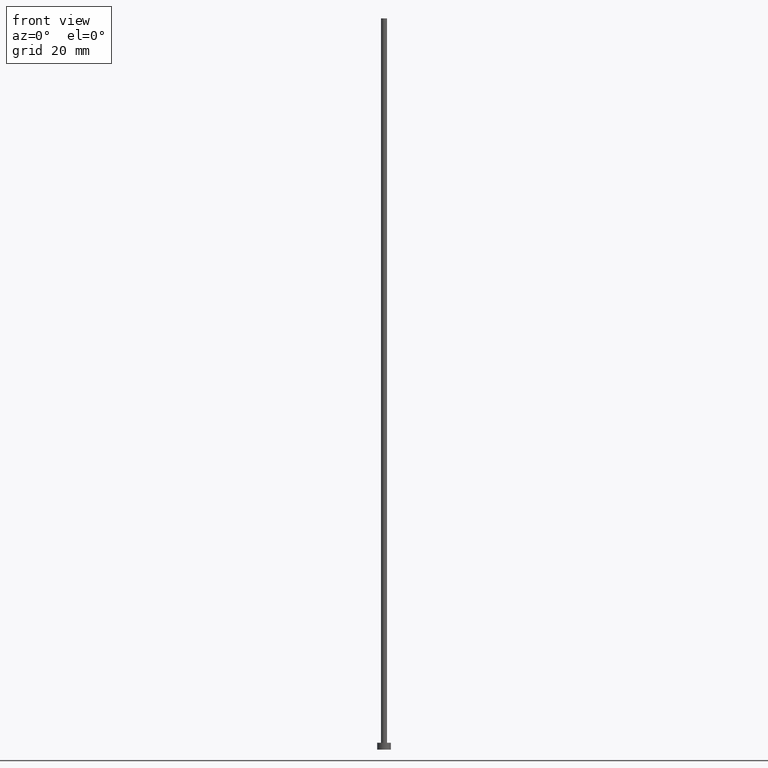
[diagram: clean part render]
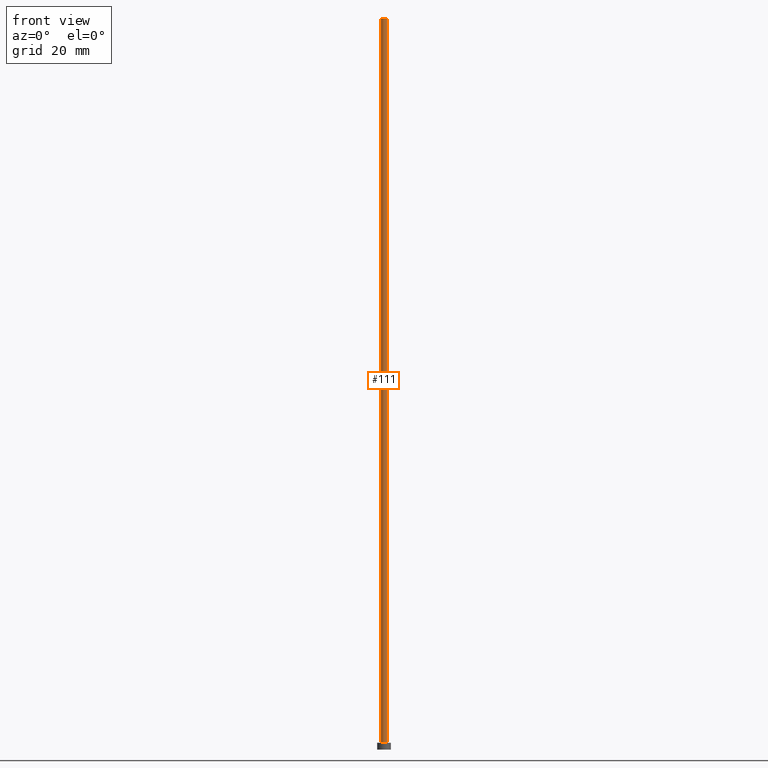
[diagram: same view with one face highlighted and labeled with its STEP entity id]
A machine part, front view. The second image highlights one B-rep face of the part: STEP entity #111.
In plain terms, the highlighted cylindrical surface (edge-blend (fillet) strip) has radius 0.65 mm, axis along (-0, -0, -1).
Its self-contained STEP definition (entity closure, byte-faithful):
#3 = AXIS2_PLACEMENT_3D ( 'NONE', #73, #173, #88 ) ;
#15 = VECTOR ( 'NONE', #235, 1000.000000000000000 ) ;
#48 = VERTEX_POINT ( 'NONE', #208 ) ;
#52 = FACE_OUTER_BOUND ( 'NONE', #159, .T. ) ;
#73 = CARTESIAN_POINT ( 'NONE',  ( 0.000000000000000000, 0.000000000000000000, 160.0000000000000000 ) ) ;
#88 = DIRECTION ( 'NONE',  ( 1.000000000000000000, 0.000000000000000000, 0.000000000000000000 ) ) ;
#90 = CARTESIAN_POINT ( 'NONE',  ( -0.6500000000000000222, 0.000000000000000000, 160.0000000000000000 ) ) ;
#92 = CARTESIAN_POINT ( 'NONE',  ( 0.000000000000000000, 0.000000000000000000, 1.500000000000000000 ) ) ;
#93 = VERTEX_POINT ( 'NONE', #109 ) ;
#103 = EDGE_CURVE ( 'NONE', #122, #93, #234, .T. ) ;
#104 = EDGE_CURVE ( 'NONE', #93, #48, #254, .T. ) ;
#107 = AXIS2_PLACEMENT_3D ( 'NONE', #92, #241, #176 ) ;
#109 = CARTESIAN_POINT ( 'NONE',  ( 0.6500000000000000222, 7.960204194457795477E-17, 160.0000000000000000 ) ) ;
#111 = ADVANCED_FACE ( 'NONE', ( #52 ), #137, .T. ) ;
#112 = LINE ( 'NONE', #138, #239 ) ;
#113 = CARTESIAN_POINT ( 'NONE',  ( -0.6500000000000000222, 0.000000000000000000, 1.500000000000000000 ) ) ;
#114 = DIRECTION ( 'NONE',  ( -0.000000000000000000, -0.000000000000000000, -1.000000000000000000 ) ) ;
#121 = CIRCLE ( 'NONE', #107, 0.6500000000000000222 ) ;
#122 = VERTEX_POINT ( 'NONE', #90 ) ;
#129 = ORIENTED_EDGE ( 'NONE', *, *, #171, .T. ) ;
#135 = CARTESIAN_POINT ( 'NONE',  ( 0.000000000000000000, 0.000000000000000000, 160.0000000000000000 ) ) ;
#137 = CYLINDRICAL_SURFACE ( 'NONE', #170, 0.6500000000000000222 ) ;
#138 = CARTESIAN_POINT ( 'NONE',  ( -0.6500000000000000222, 0.000000000000000000, 160.0000000000000000 ) ) ;
#141 = VERTEX_POINT ( 'NONE', #113 ) ;
#149 = ORIENTED_EDGE ( 'NONE', *, *, #243, .T. ) ;
#154 = CARTESIAN_POINT ( 'NONE',  ( 0.6500000000000000222, 7.960204194457795477E-17, 160.0000000000000000 ) ) ;
#159 = EDGE_LOOP ( 'NONE', ( #200, #224, #129, #149 ) ) ;
#170 = AXIS2_PLACEMENT_3D ( 'NONE', #135, #191, #172 ) ;
#171 = EDGE_CURVE ( 'NONE', #122, #141, #112, .T. ) ;
#172 = DIRECTION ( 'NONE',  ( -1.000000000000000000, 0.000000000000000000, 0.000000000000000000 ) ) ;
#173 = DIRECTION ( 'NONE',  ( 0.000000000000000000, 0.000000000000000000, 1.000000000000000000 ) ) ;
#176 = DIRECTION ( 'NONE',  ( 1.000000000000000000, 0.000000000000000000, 0.000000000000000000 ) ) ;
#191 = DIRECTION ( 'NONE',  ( -0.000000000000000000, -0.000000000000000000, -1.000000000000000000 ) ) ;
#200 = ORIENTED_EDGE ( 'NONE', *, *, #104, .F. ) ;
#208 = CARTESIAN_POINT ( 'NONE',  ( 0.6500000000000000222, 7.960204194457795477E-17, 1.500000000000000000 ) ) ;
#224 = ORIENTED_EDGE ( 'NONE', *, *, #103, .F. ) ;
#234 = CIRCLE ( 'NONE', #3, 0.6500000000000000222 ) ;
#235 = DIRECTION ( 'NONE',  ( -0.000000000000000000, -0.000000000000000000, -1.000000000000000000 ) ) ;
#239 = VECTOR ( 'NONE', #114, 1000.000000000000000 ) ;
#241 = DIRECTION ( 'NONE',  ( 0.000000000000000000, 0.000000000000000000, 1.000000000000000000 ) ) ;
#243 = EDGE_CURVE ( 'NONE', #141, #48, #121, .T. ) ;
#254 = LINE ( 'NONE', #154, #15 ) ;